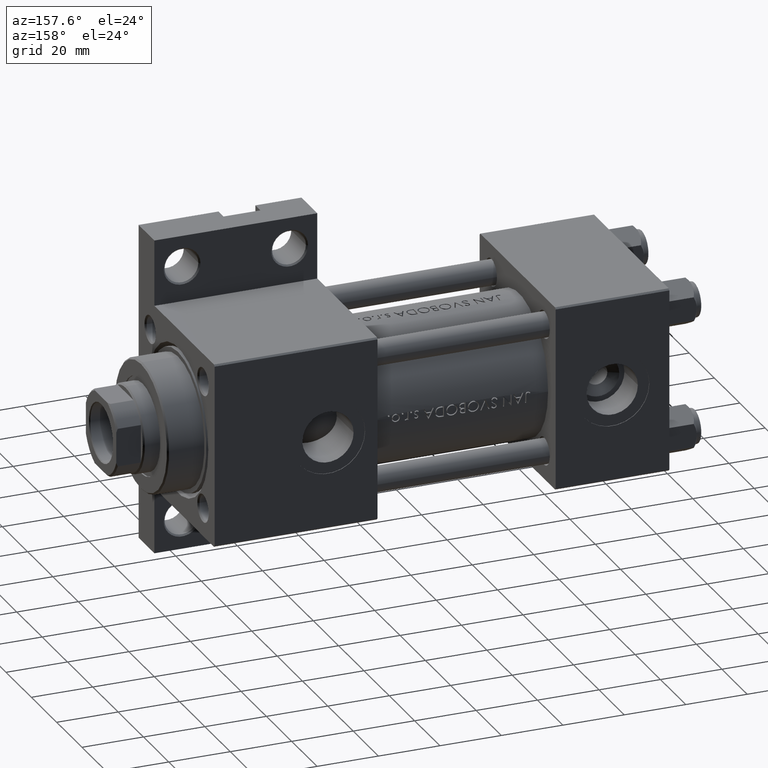
[diagram: clean part render]
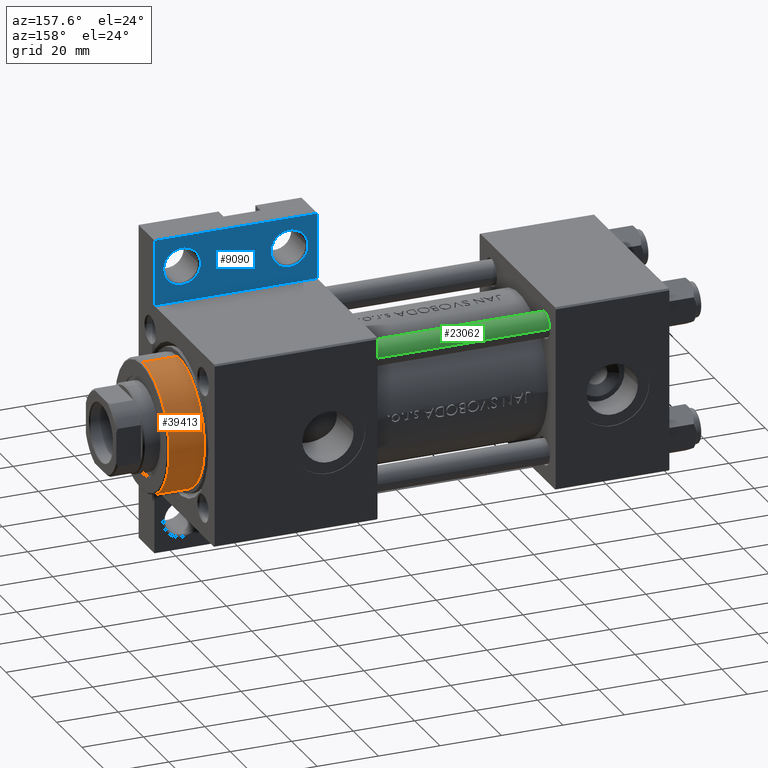
[diagram: same view with three faces highlighted in distinct colors, each labeled with its STEP entity id]
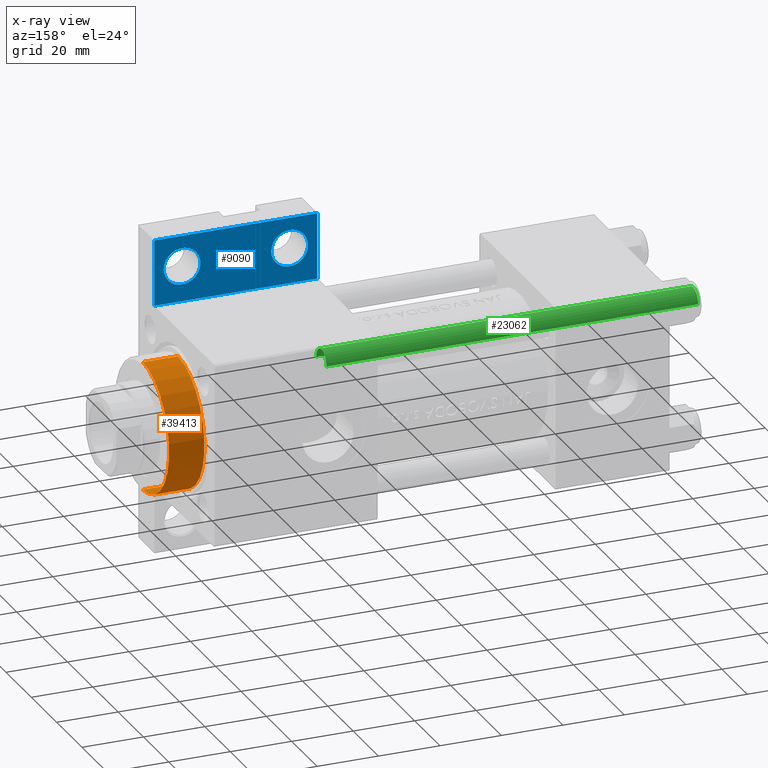
[diagram: x-ray of the same camera — body ghosted, the three highlighted faces saturated]
A machine part, auxiliary view with three faces highlighted in distinct colors.
The next image is the same camera in x-ray (body ghosted, the three faces saturated) — at least one of them is partly hidden behind the body in this view.
Their STEP definitions:

[orange] entity #39413 — the highlighted cylindrical surface (partial cylindrical patch) has radius 21 mm, axis along (-1, 0, 0).
#1288 = CARTESIAN_POINT ( 'NONE',  ( 21.00000000000000000, 2.571758278209441661E-15, 40.19999999999998863 ) ) ;
#1788 = DIRECTION ( 'NONE',  ( -0.000000000000000000, -0.000000000000000000, -1.000000000000000000 ) ) ;
#2277 = DIRECTION ( 'NONE',  ( 0.000000000000000000, 0.000000000000000000, 1.000000000000000000 ) ) ;
#3007 = EDGE_LOOP ( 'NONE', ( #13745, #38678, #35712, #7489 ) ) ;
#3944 = DIRECTION ( 'NONE',  ( -0.000000000000000000, -0.000000000000000000, -1.000000000000000000 ) ) ;
#4481 = DIRECTION ( 'NONE',  ( 1.000000000000000000, 0.000000000000000000, 0.000000000000000000 ) ) ;
#4635 = VECTOR ( 'NONE', #3944, 1000.000000000000000 ) ;
#4864 = AXIS2_PLACEMENT_3D ( 'NONE', #42731, #2277, #24734 ) ;
#7489 = ORIENTED_EDGE ( 'NONE', *, *, #24786, .T. ) ;
#9117 = DIRECTION ( 'NONE',  ( 0.000000000000000000, 0.000000000000000000, -1.000000000000000000 ) ) ;
#9708 = CARTESIAN_POINT ( 'NONE',  ( -21.00000000000000000, 0.000000000000000000, 40.70000000000000284 ) ) ;
#11813 = LINE ( 'NONE', #37733, #4635 ) ;
#13107 = DIRECTION ( 'NONE',  ( -1.000000000000000000, 0.000000000000000000, 0.000000000000000000 ) ) ;
#13745 = ORIENTED_EDGE ( 'NONE', *, *, #21036, .F. ) ;
#15096 = VERTEX_POINT ( 'NONE', #15301 ) ;
#15301 = CARTESIAN_POINT ( 'NONE',  ( 21.00000000000000000, 2.571758278209441661E-15, 28.69999999999999929 ) ) ;
#19211 = AXIS2_PLACEMENT_3D ( 'NONE', #32101, #1788, #13107 ) ;
#19656 = CARTESIAN_POINT ( 'NONE',  ( -21.00000000000000000, 0.000000000000000000, 40.19999999999998863 ) ) ;
#21036 = EDGE_CURVE ( 'NONE', #41115, #15096, #11813, .T. ) ;
#24734 = DIRECTION ( 'NONE',  ( 1.000000000000000000, 0.000000000000000000, 0.000000000000000000 ) ) ;
#24777 = DIRECTION ( 'NONE',  ( -0.000000000000000000, -0.000000000000000000, -1.000000000000000000 ) ) ;
#24786 = EDGE_CURVE ( 'NONE', #27406, #15096, #31646, .T. ) ;
#27406 = VERTEX_POINT ( 'NONE', #41359 ) ;
#31165 = VERTEX_POINT ( 'NONE', #19656 ) ;
#31646 = CIRCLE ( 'NONE', #4864, 21.00000000000000000 ) ;
#32101 = CARTESIAN_POINT ( 'NONE',  ( 0.000000000000000000, 0.000000000000000000, 40.70000000000000284 ) ) ;
#35563 = FACE_OUTER_BOUND ( 'NONE', #3007, .T. ) ;
#35712 = ORIENTED_EDGE ( 'NONE', *, *, #45449, .T. ) ;
#37733 = CARTESIAN_POINT ( 'NONE',  ( 21.00000000000000000, 2.571758278209441661E-15, 40.70000000000000284 ) ) ;
#38678 = ORIENTED_EDGE ( 'NONE', *, *, #47384, .T. ) ;
#39413 = ADVANCED_FACE ( 'NONE', ( #35563 ), #43186, .T. ) ;
#41115 = VERTEX_POINT ( 'NONE', #1288 ) ;
#41359 = CARTESIAN_POINT ( 'NONE',  ( -21.00000000000000000, 0.000000000000000000, 28.69999999999999929 ) ) ;
#42731 = CARTESIAN_POINT ( 'NONE',  ( 0.000000000000000000, 0.000000000000000000, 28.69999999999999929 ) ) ;
#42915 = CARTESIAN_POINT ( 'NONE',  ( 0.000000000000000000, 0.000000000000000000, 40.19999999999998863 ) ) ;
#43186 = CYLINDRICAL_SURFACE ( 'NONE', #19211, 21.00000000000000000 ) ;
#43490 = LINE ( 'NONE', #9708, #48096 ) ;
#44194 = CIRCLE ( 'NONE', #45796, 21.00000000000000000 ) ;
#45449 = EDGE_CURVE ( 'NONE', #31165, #27406, #43490, .T. ) ;
#45796 = AXIS2_PLACEMENT_3D ( 'NONE', #42915, #9117, #4481 ) ;
#47384 = EDGE_CURVE ( 'NONE', #41115, #31165, #44194, .T. ) ;
#48096 = VECTOR ( 'NONE', #24777, 1000.000000000000000 ) ;

[blue] entity #9090 — the highlighted planar face has unit normal (0, -1, 0).
#564 = CARTESIAN_POINT ( 'NONE',  ( 148.0000000000000000, -51.50000000000000711, -17.49999999999999645 ) ) ;
#1727 = AXIS2_PLACEMENT_3D ( 'NONE', #45520, #48727, #37644 ) ;
#2439 = LINE ( 'NONE', #9824, #30847 ) ;
#4574 = CARTESIAN_POINT ( 'NONE',  ( 94.99999999999998579, -51.50000000000000711, -17.49999999999999645 ) ) ;
#6606 = DIRECTION ( 'NONE',  ( 1.000000000000000000, -1.309225264888156623E-16, 0.000000000000000000 ) ) ;
#8358 = CARTESIAN_POINT ( 'NONE',  ( 95.00000000000000000, -30.00000000000000000, -17.49999999999999645 ) ) ;
#8636 = ORIENTED_EDGE ( 'NONE', *, *, #15318, .T. ) ;
#9090 = ADVANCED_FACE ( 'NONE', ( #47429, #24294, #13657 ), #28725, .F. ) ;
#9420 = ORIENTED_EDGE ( 'NONE', *, *, #33831, .F. ) ;
#9824 = CARTESIAN_POINT ( 'NONE',  ( 94.99999999999998579, -51.50000000000000711, -17.49999999999999645 ) ) ;
#10285 = CARTESIAN_POINT ( 'NONE',  ( 95.00000000000000000, -30.00000000000000000, -17.49999999999999645 ) ) ;
#10339 = VERTEX_POINT ( 'NONE', #35511 ) ;
#11231 = CARTESIAN_POINT ( 'NONE',  ( 148.0000000000000000, -30.00000000000000000, -17.49999999999998224 ) ) ;
#12704 = VERTEX_POINT ( 'NONE', #16759 ) ;
#13215 = CARTESIAN_POINT ( 'NONE',  ( 138.9999999999999432, -41.50000000000000000, -17.49999999999999645 ) ) ;
#13585 = DIRECTION ( 'NONE',  ( -1.000000000000000000, 0.000000000000000000, 0.000000000000000000 ) ) ;
#13657 = FACE_OUTER_BOUND ( 'NONE', #33284, .T. ) ;
#13893 = DIRECTION ( 'NONE',  ( 0.000000000000000000, 0.000000000000000000, -1.000000000000000000 ) ) ;
#15318 = EDGE_CURVE ( 'NONE', #28143, #46985, #36127, .T. ) ;
#16372 = LINE ( 'NONE', #4574, #31977 ) ;
#16759 = CARTESIAN_POINT ( 'NONE',  ( 98.00049999999993133, -41.49999999999997868, -17.49999999999999645 ) ) ;
#18032 = AXIS2_PLACEMENT_3D ( 'NONE', #13215, #35909, #32205 ) ;
#19151 = EDGE_CURVE ( 'NONE', #34516, #19778, #27804, .T. ) ;
#19660 = DIRECTION ( 'NONE',  ( -0.000000000000000000, -1.000000000000000000, -0.000000000000000000 ) ) ;
#19778 = VERTEX_POINT ( 'NONE', #564 ) ;
#21035 = VERTEX_POINT ( 'NONE', #8358 ) ;
#21484 = CARTESIAN_POINT ( 'NONE',  ( 103.9999999999999574, -41.49999999999997868, -17.49999999999999645 ) ) ;
#23395 = EDGE_CURVE ( 'NONE', #43258, #21035, #2439, .T. ) ;
#23535 = ORIENTED_EDGE ( 'NONE', *, *, #23395, .F. ) ;
#24294 = FACE_BOUND ( 'NONE', #35664, .T. ) ;
#24866 = LINE ( 'NONE', #10285, #43090 ) ;
#25374 = EDGE_CURVE ( 'NONE', #46985, #28143, #44238, .T. ) ;
#25478 = ORIENTED_EDGE ( 'NONE', *, *, #41467, .T. ) ;
#26712 = CARTESIAN_POINT ( 'NONE',  ( 133.0004999999999598, -41.50000000000000000, -17.49999999999999645 ) ) ;
#26895 = CIRCLE ( 'NONE', #48108, 5.999500000000018929 ) ;
#27319 = CARTESIAN_POINT ( 'NONE',  ( 148.0000000000000000, -51.50000000000000711, -17.49999999999999645 ) ) ;
#27366 = AXIS2_PLACEMENT_3D ( 'NONE', #43733, #13893, #28961 ) ;
#27804 = LINE ( 'NONE', #27319, #38672 ) ;
#28143 = VERTEX_POINT ( 'NONE', #26712 ) ;
#28356 = DIRECTION ( 'NONE',  ( 6.454785026890443649E-16, 1.000000000000000000, 0.000000000000000000 ) ) ;
#28725 = PLANE ( 'NONE',  #27366 ) ;
#28961 = DIRECTION ( 'NONE',  ( -1.000000000000000000, 0.000000000000000000, -0.000000000000000000 ) ) ;
#29016 = CARTESIAN_POINT ( 'NONE',  ( 103.9999999999999574, -41.49999999999997868, -17.49999999999999645 ) ) ;
#30847 = VECTOR ( 'NONE', #28356, 1000.000000000000000 ) ;
#31455 = ORIENTED_EDGE ( 'NONE', *, *, #19151, .F. ) ;
#31618 = AXIS2_PLACEMENT_3D ( 'NONE', #29016, #45015, #40823 ) ;
#31977 = VECTOR ( 'NONE', #35133, 1000.000000000000000 ) ;
#32205 = DIRECTION ( 'NONE',  ( -1.000000000000000000, 0.000000000000000000, 0.000000000000000000 ) ) ;
#32332 = DIRECTION ( 'NONE',  ( 0.000000000000000000, 0.000000000000000000, -1.000000000000000000 ) ) ;
#33284 = EDGE_LOOP ( 'NONE', ( #31455, #9420, #23535, #39359 ) ) ;
#33831 = EDGE_CURVE ( 'NONE', #21035, #34516, #24866, .T. ) ;
#34516 = VERTEX_POINT ( 'NONE', #11231 ) ;
#34637 = EDGE_CURVE ( 'NONE', #19778, #43258, #16372, .T. ) ;
#35094 = ORIENTED_EDGE ( 'NONE', *, *, #25374, .T. ) ;
#35133 = DIRECTION ( 'NONE',  ( -1.000000000000000000, -0.000000000000000000, -0.000000000000000000 ) ) ;
#35511 = CARTESIAN_POINT ( 'NONE',  ( 109.9994999999999692, -41.49999999999997868, -17.49999999999999645 ) ) ;
#35664 = EDGE_LOOP ( 'NONE', ( #25478, #39893 ) ) ;
#35909 = DIRECTION ( 'NONE',  ( 0.000000000000000000, 0.000000000000000000, -1.000000000000000000 ) ) ;
#36127 = CIRCLE ( 'NONE', #18032, 5.999499999999990507 ) ;
#37237 = CARTESIAN_POINT ( 'NONE',  ( 94.99999999999998579, -51.50000000000000711, -17.49999999999999645 ) ) ;
#37644 = DIRECTION ( 'NONE',  ( -1.000000000000000000, 0.000000000000000000, 0.000000000000000000 ) ) ;
#38672 = VECTOR ( 'NONE', #19660, 1000.000000000000000 ) ;
#39359 = ORIENTED_EDGE ( 'NONE', *, *, #34637, .F. ) ;
#39893 = ORIENTED_EDGE ( 'NONE', *, *, #41137, .T. ) ;
#40823 = DIRECTION ( 'NONE',  ( -1.000000000000000000, 0.000000000000000000, 0.000000000000000000 ) ) ;
#41137 = EDGE_CURVE ( 'NONE', #12704, #10339, #26895, .T. ) ;
#41467 = EDGE_CURVE ( 'NONE', #10339, #12704, #43388, .T. ) ;
#43090 = VECTOR ( 'NONE', #6606, 1000.000000000000000 ) ;
#43258 = VERTEX_POINT ( 'NONE', #37237 ) ;
#43388 = CIRCLE ( 'NONE', #31618, 5.999500000000018929 ) ;
#43733 = CARTESIAN_POINT ( 'NONE',  ( 0.000000000000000000, 0.000000000000000000, -17.49999999999999645 ) ) ;
#44238 = CIRCLE ( 'NONE', #1727, 5.999499999999990507 ) ;
#44548 = CARTESIAN_POINT ( 'NONE',  ( 144.9994999999999550, -41.50000000000000000, -17.49999999999999645 ) ) ;
#45015 = DIRECTION ( 'NONE',  ( 0.000000000000000000, 0.000000000000000000, -1.000000000000000000 ) ) ;
#45520 = CARTESIAN_POINT ( 'NONE',  ( 138.9999999999999432, -41.50000000000000000, -17.49999999999999645 ) ) ;
#46985 = VERTEX_POINT ( 'NONE', #44548 ) ;
#47429 = FACE_BOUND ( 'NONE', #47944, .T. ) ;
#47944 = EDGE_LOOP ( 'NONE', ( #35094, #8636 ) ) ;
#48108 = AXIS2_PLACEMENT_3D ( 'NONE', #21484, #32332, #13585 ) ;
#48727 = DIRECTION ( 'NONE',  ( 0.000000000000000000, 0.000000000000000000, -1.000000000000000000 ) ) ;

[green] entity #23062 — the highlighted cylindrical surface (edge-blend (fillet) strip) has radius 4 mm, axis along (1, -0, 0).
#395 = EDGE_CURVE ( 'NONE', #46038, #5320, #24714, .T. ) ;
#1299 = CYLINDRICAL_SURFACE ( 'NONE', #46528, 4.000000000000000000 ) ;
#4310 = ORIENTED_EDGE ( 'NONE', *, *, #28959, .T. ) ;
#5320 = VERTEX_POINT ( 'NONE', #18205 ) ;
#6614 = DIRECTION ( 'NONE',  ( -0.000000000000000000, -0.000000000000000000, 1.000000000000000000 ) ) ;
#8681 = DIRECTION ( 'NONE',  ( -1.000000000000000000, 0.000000000000000000, 0.000000000000000000 ) ) ;
#12233 = EDGE_LOOP ( 'NONE', ( #30221, #23429, #4310, #24738 ) ) ;
#12383 = FACE_OUTER_BOUND ( 'NONE', #12233, .T. ) ;
#12492 = EDGE_CURVE ( 'NONE', #46038, #23244, #26924, .T. ) ;
#13595 = CARTESIAN_POINT ( 'NONE',  ( 4.000000000000000000, 4.898587196589411843E-16, 0.5000000000000559552 ) ) ;
#16022 = LINE ( 'NONE', #30348, #43829 ) ;
#18205 = CARTESIAN_POINT ( 'NONE',  ( -4.000000000000000000, 0.000000000000000000, 121.5000000000000426 ) ) ;
#18709 = CARTESIAN_POINT ( 'NONE',  ( -4.000000000000000000, 0.000000000000000000, 0.5000000000000559552 ) ) ;
#19745 = DIRECTION ( 'NONE',  ( -0.000000000000000000, -0.000000000000000000, -1.000000000000000000 ) ) ;
#19978 = DIRECTION ( 'NONE',  ( -0.000000000000000000, -0.000000000000000000, -1.000000000000000000 ) ) ;
#20781 = CIRCLE ( 'NONE', #43562, 4.000000000000000000 ) ;
#23062 = ADVANCED_FACE ( 'NONE', ( #12383 ), #1299, .T. ) ;
#23244 = VERTEX_POINT ( 'NONE', #13595 ) ;
#23429 = ORIENTED_EDGE ( 'NONE', *, *, #395, .T. ) ;
#24714 = CIRCLE ( 'NONE', #34195, 4.000000000000000000 ) ;
#24738 = ORIENTED_EDGE ( 'NONE', *, *, #40069, .T. ) ;
#25439 = CARTESIAN_POINT ( 'NONE',  ( 0.000000000000000000, 0.000000000000000000, 121.5000000000000426 ) ) ;
#26684 = CARTESIAN_POINT ( 'NONE',  ( 4.000000000000000000, 4.898587196589411843E-16, 122.0000000000000000 ) ) ;
#26924 = LINE ( 'NONE', #26684, #43900 ) ;
#28959 = EDGE_CURVE ( 'NONE', #5320, #42436, #16022, .T. ) ;
#29312 = CARTESIAN_POINT ( 'NONE',  ( 0.000000000000000000, 0.000000000000000000, 0.5000000000000559552 ) ) ;
#30221 = ORIENTED_EDGE ( 'NONE', *, *, #12492, .F. ) ;
#30348 = CARTESIAN_POINT ( 'NONE',  ( -4.000000000000000000, 0.000000000000000000, 122.0000000000000000 ) ) ;
#34195 = AXIS2_PLACEMENT_3D ( 'NONE', #25439, #44398, #47595 ) ;
#35082 = CARTESIAN_POINT ( 'NONE',  ( 0.000000000000000000, 0.000000000000000000, 122.0000000000000000 ) ) ;
#40069 = EDGE_CURVE ( 'NONE', #42436, #23244, #20781, .T. ) ;
#41400 = CARTESIAN_POINT ( 'NONE',  ( 4.000000000000000000, 4.898587196589411843E-16, 121.5000000000000426 ) ) ;
#42229 = DIRECTION ( 'NONE',  ( -0.000000000000000000, -0.000000000000000000, -1.000000000000000000 ) ) ;
#42436 = VERTEX_POINT ( 'NONE', #18709 ) ;
#43562 = AXIS2_PLACEMENT_3D ( 'NONE', #29312, #6614, #44085 ) ;
#43829 = VECTOR ( 'NONE', #19978, 1000.000000000000000 ) ;
#43900 = VECTOR ( 'NONE', #19745, 1000.000000000000000 ) ;
#44085 = DIRECTION ( 'NONE',  ( 1.000000000000000000, 0.000000000000000000, 0.000000000000000000 ) ) ;
#44398 = DIRECTION ( 'NONE',  ( 0.000000000000000000, 0.000000000000000000, -1.000000000000000000 ) ) ;
#46038 = VERTEX_POINT ( 'NONE', #41400 ) ;
#46528 = AXIS2_PLACEMENT_3D ( 'NONE', #35082, #42229, #8681 ) ;
#47595 = DIRECTION ( 'NONE',  ( 1.000000000000000000, 0.000000000000000000, 0.000000000000000000 ) ) ;